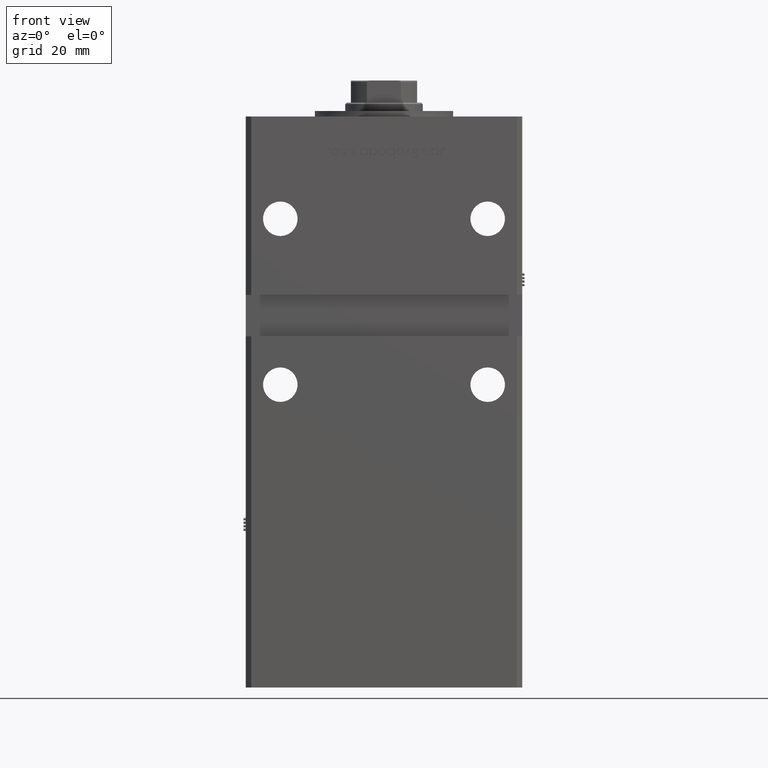
[diagram: clean part render]
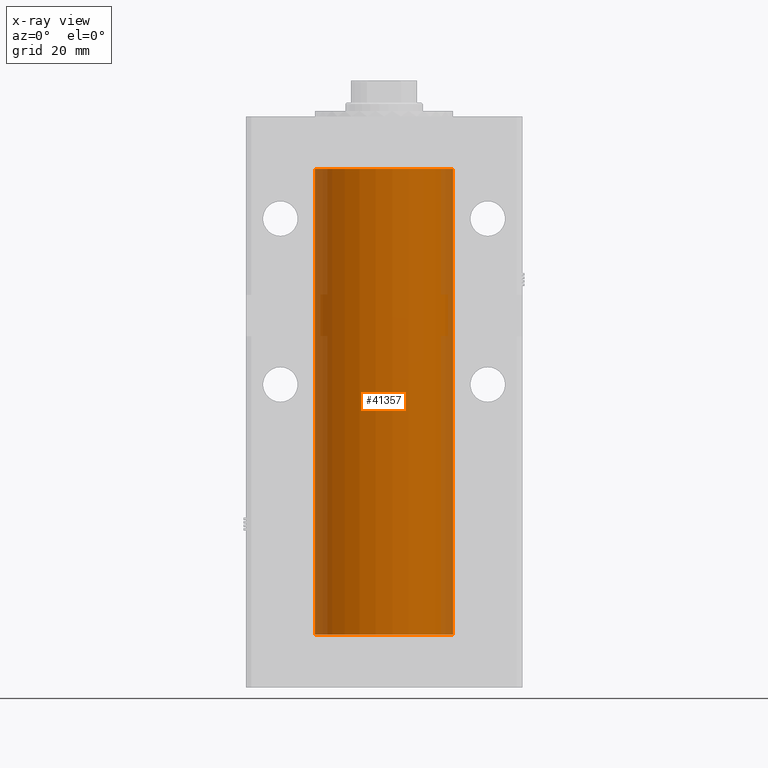
[diagram: x-ray — body ghosted, one internal face saturated and labeled with its STEP entity id]
A machine part, front view, then the same camera in x-ray: the body is ghosted and one INTERNAL B-rep face — a face not visible from any outside direction — is saturated and labeled: STEP entity #41357.
In plain terms, the highlighted cylindrical surface (partial cylindrical patch) has radius 25 mm, axis along (-0, -0, -1).
Its self-contained STEP definition (entity closure, byte-faithful):
#3117 = ORIENTED_EDGE ( 'NONE', *, *, #3394, .F. ) ;
#3394 = EDGE_CURVE ( 'NONE', #23818, #30680, #14598, .T. ) ;
#3566 = DIRECTION ( 'NONE',  ( -0.000000000000000000, 0.000000000000000000, 1.000000000000000000 ) ) ;
#5330 = DIRECTION ( 'NONE',  ( 1.000000000000000000, 0.000000000000000000, 0.000000000000000000 ) ) ;
#9190 = DIRECTION ( 'NONE',  ( -1.000000000000000000, 0.000000000000000000, 0.000000000000000000 ) ) ;
#12493 = CARTESIAN_POINT ( 'NONE',  ( 25.00000000000000000, 3.061616997868383043E-15, 168.5000000000000000 ) ) ;
#14289 = LINE ( 'NONE', #18276, #35864 ) ;
#14598 = CIRCLE ( 'NONE', #55569, 25.00000000000000000 ) ;
#15397 = CIRCLE ( 'NONE', #26294, 25.00000000000000000 ) ;
#15840 = VERTEX_POINT ( 'NONE', #50526 ) ;
#16323 = ORIENTED_EDGE ( 'NONE', *, *, #19456, .T. ) ;
#17747 = DIRECTION ( 'NONE',  ( -0.000000000000000000, -0.000000000000000000, -1.000000000000000000 ) ) ;
#17933 = CARTESIAN_POINT ( 'NONE',  ( 25.00000000000000000, 3.061616997868383043E-15, 0.000000000000000000 ) ) ;
#18276 = CARTESIAN_POINT ( 'NONE',  ( -25.00000000000000000, 0.000000000000000000, 168.5000000000000000 ) ) ;
#19456 = EDGE_CURVE ( 'NONE', #47944, #30680, #25602, .T. ) ;
#20052 = FACE_OUTER_BOUND ( 'NONE', #43462, .T. ) ;
#21888 = AXIS2_PLACEMENT_3D ( 'NONE', #26017, #17747, #9190 ) ;
#23818 = VERTEX_POINT ( 'NONE', #33154 ) ;
#25602 = LINE ( 'NONE', #12493, #38595 ) ;
#26017 = CARTESIAN_POINT ( 'NONE',  ( 0.000000000000000000, 0.000000000000000000, 168.5000000000000000 ) ) ;
#26294 = AXIS2_PLACEMENT_3D ( 'NONE', #39068, #31566, #5330 ) ;
#30680 = VERTEX_POINT ( 'NONE', #17933 ) ;
#31566 = DIRECTION ( 'NONE',  ( -0.000000000000000000, 0.000000000000000000, 1.000000000000000000 ) ) ;
#33154 = CARTESIAN_POINT ( 'NONE',  ( -25.00000000000000000, 0.000000000000000000, 0.000000000000000000 ) ) ;
#35680 = DIRECTION ( 'NONE',  ( -0.000000000000000000, -0.000000000000000000, -1.000000000000000000 ) ) ;
#35864 = VECTOR ( 'NONE', #35680, 1000.000000000000000 ) ;
#38410 = EDGE_CURVE ( 'NONE', #15840, #47944, #15397, .T. ) ;
#38595 = VECTOR ( 'NONE', #48130, 1000.000000000000000 ) ;
#39068 = CARTESIAN_POINT ( 'NONE',  ( 0.000000000000000000, 0.000000000000000000, 168.5000000000000000 ) ) ;
#39229 = DIRECTION ( 'NONE',  ( 1.000000000000000000, 0.000000000000000000, 0.000000000000000000 ) ) ;
#41357 = ADVANCED_FACE ( 'NONE', ( #20052 ), #48540, .F. ) ;
#41446 = CARTESIAN_POINT ( 'NONE',  ( 25.00000000000000000, 3.061616997868383043E-15, 168.5000000000000000 ) ) ;
#43462 = EDGE_LOOP ( 'NONE', ( #53700, #16323, #3117, #43783 ) ) ;
#43783 = ORIENTED_EDGE ( 'NONE', *, *, #55281, .F. ) ;
#47944 = VERTEX_POINT ( 'NONE', #41446 ) ;
#48130 = DIRECTION ( 'NONE',  ( -0.000000000000000000, -0.000000000000000000, -1.000000000000000000 ) ) ;
#48540 = CYLINDRICAL_SURFACE ( 'NONE', #21888, 25.00000000000000000 ) ;
#50526 = CARTESIAN_POINT ( 'NONE',  ( -25.00000000000000000, 0.000000000000000000, 168.5000000000000000 ) ) ;
#51204 = CARTESIAN_POINT ( 'NONE',  ( 0.000000000000000000, 0.000000000000000000, 0.000000000000000000 ) ) ;
#53700 = ORIENTED_EDGE ( 'NONE', *, *, #38410, .T. ) ;
#55281 = EDGE_CURVE ( 'NONE', #15840, #23818, #14289, .T. ) ;
#55569 = AXIS2_PLACEMENT_3D ( 'NONE', #51204, #3566, #39229 ) ;